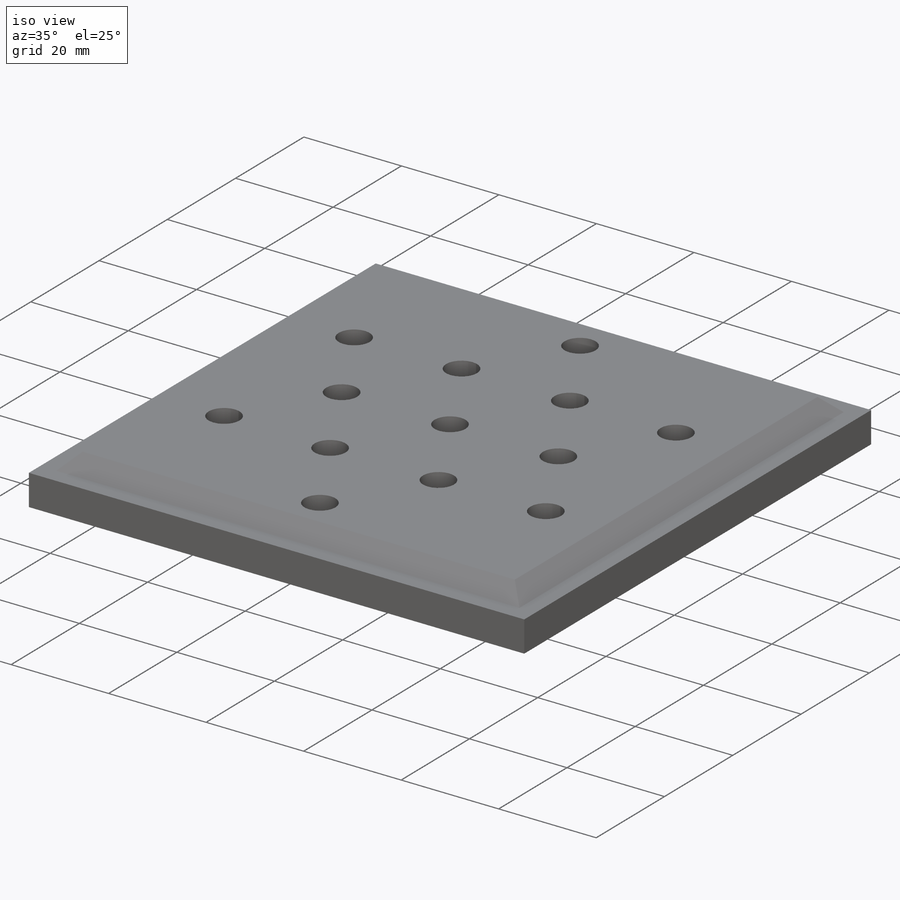
[diagram: iso view]
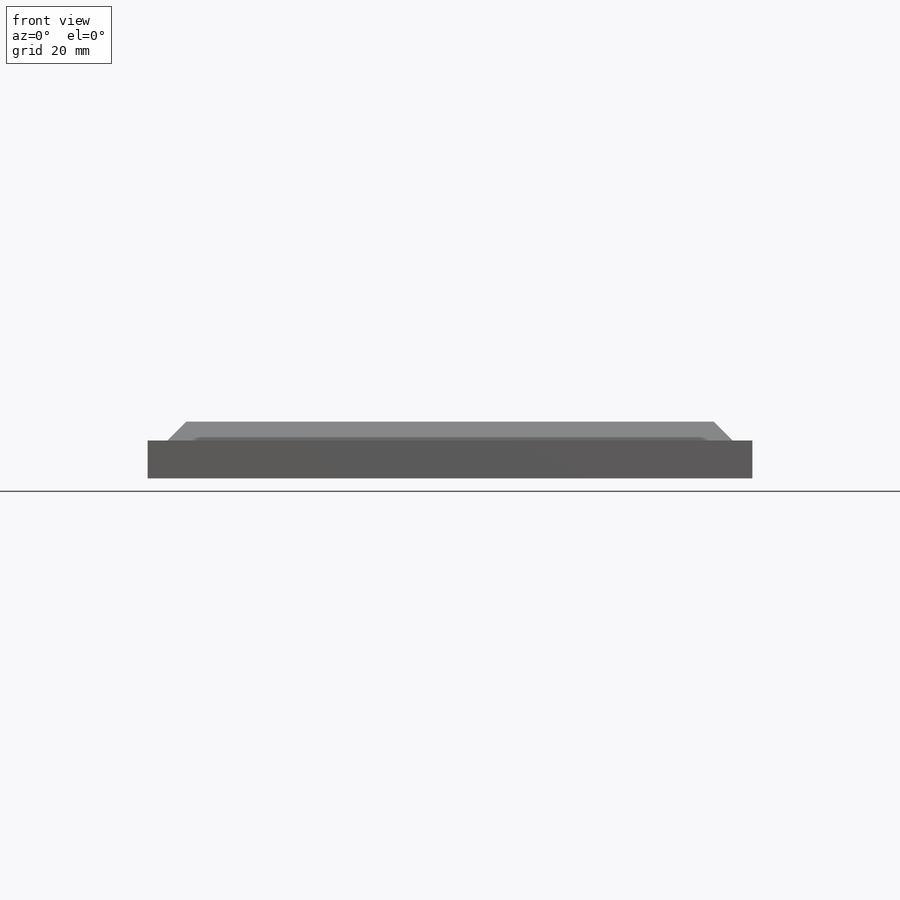
[diagram: front view]
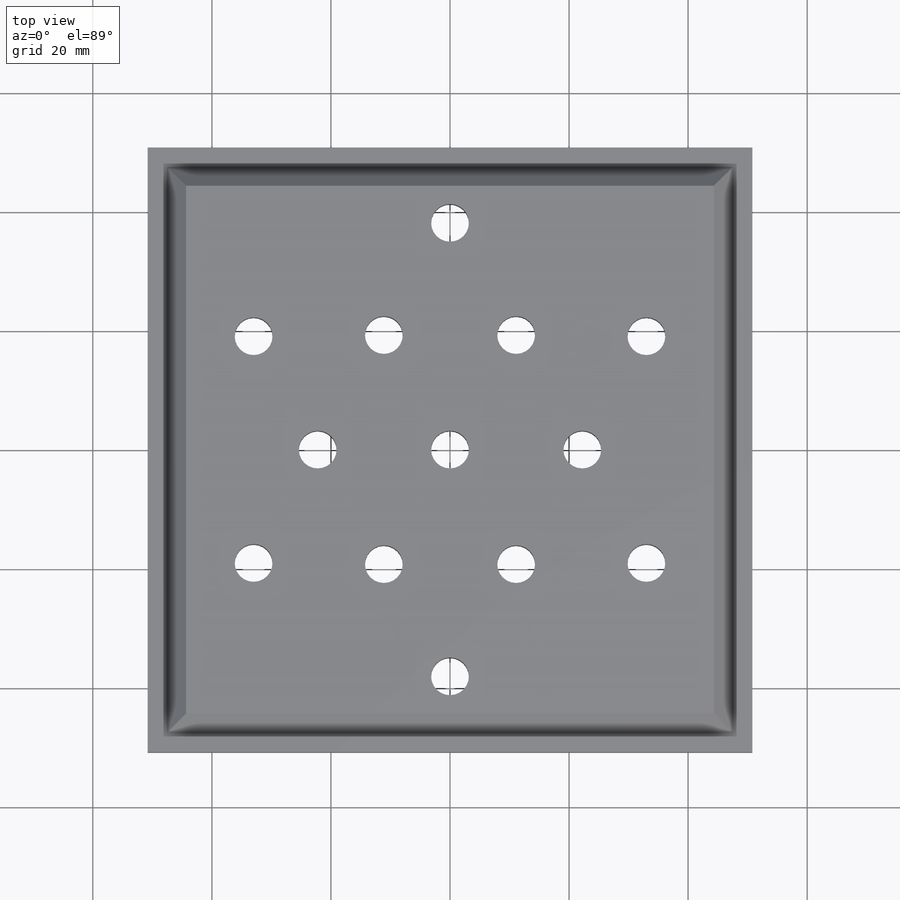
[diagram: top view]
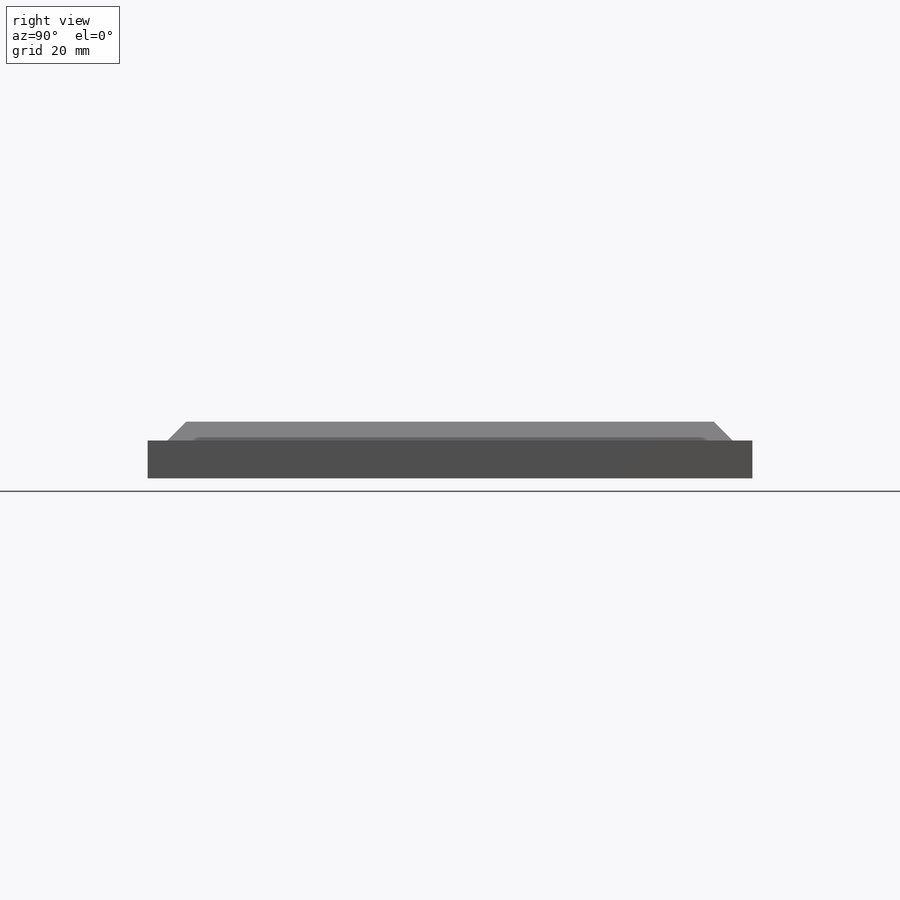
[diagram: right view]
SOLIDWORKS PART (.sldprt)
format: sldprt  version: not decoded by parser v0  size: 223,744 bytes
history: native  units: mm
features: sketch x3, cut_extrude x2, material x1, extrude x1, chamfer x1 (+12 scaffold rows collapsed)
feature tree (20):
  scaffold x12  (default folders/planes/origin — collapsed)
  material  "Material <not specified>"
  sketch  "Sketch1"  dims[D1=101.6mm D2=101.6mm]
  extrude  "Boss-Extrude1"  Depth=9.525mm
  sketch  "Sketch2"  dims[D1=3.302mm D2=3.302mm]
  cut_extrude  "Cut-Extrude1"  Depth=3.175mm
  chamfer  "Chamfer1"  Distance=3.175mm Angle=45deg
  sketch  "Sketch3"  dims[D1=76.2mm D2=6.35mm D4=44.45mm D5=6.35mm D7=6.35mm D3=6.0 D6=6.0]
  cut_extrude  "Cut-Extrude2"  [1 undecoded]
decode coverage: 6 of 7 modeling features carry decoded parameters
note: 1 parameter value undecoded
note: suppression state not decoded; provenance and decode notes live in map.json
